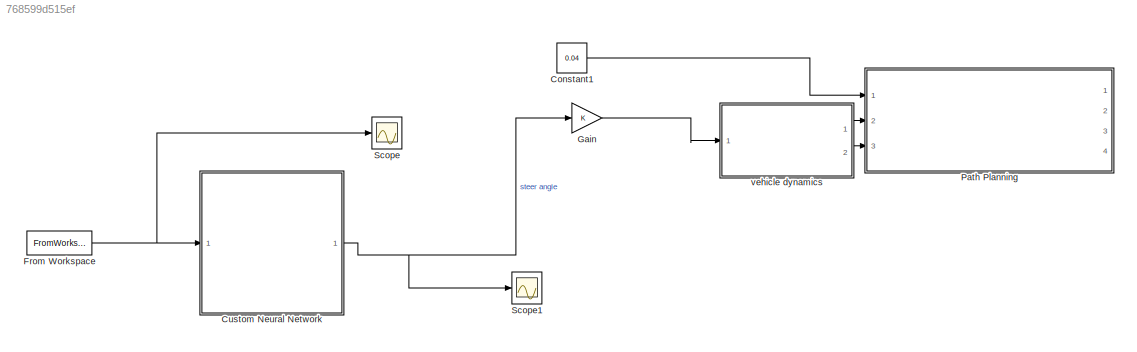
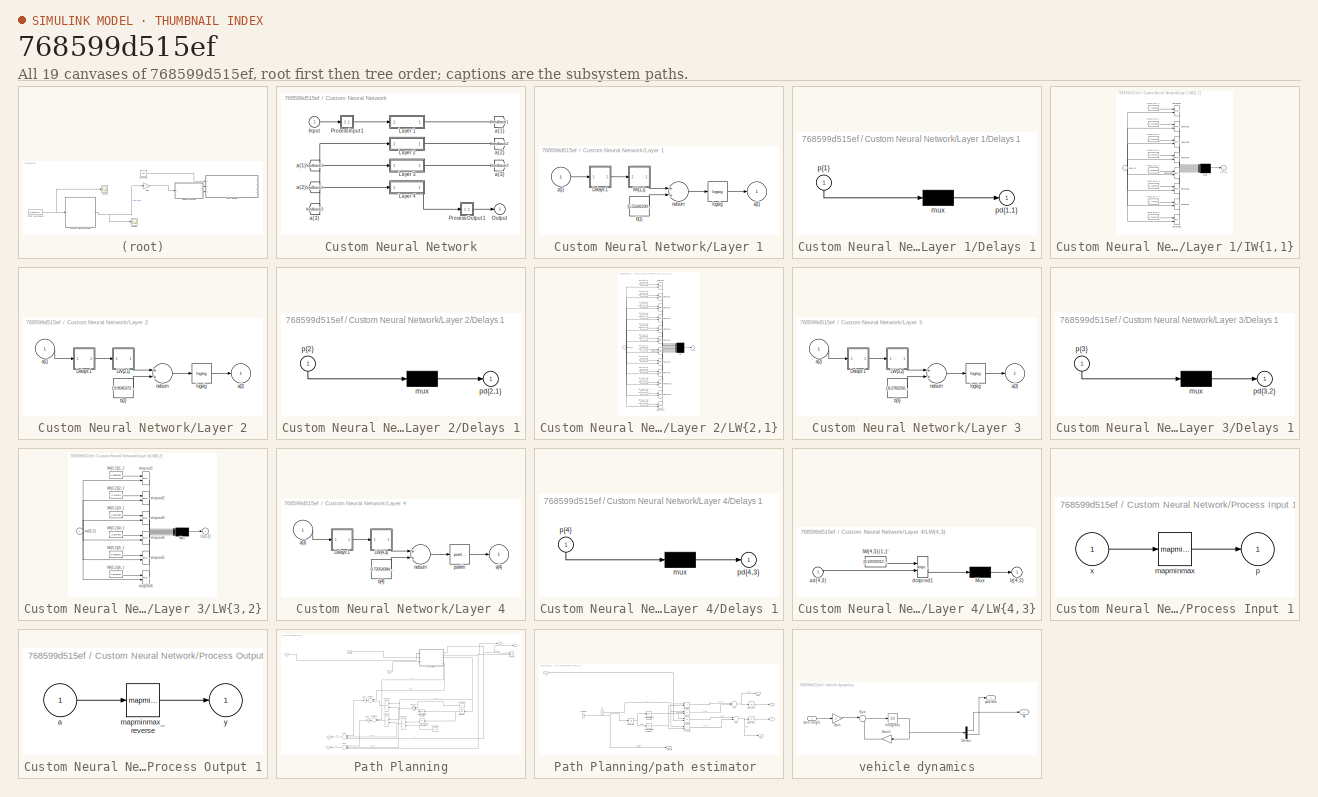
[diagram: thumbnail index - all 19 canvases of the model, root first then tree order]
MODEL slx_768599d515ef
KIND model
CONFIG AbsTol = auto
CONFIG FixedStep = auto
CONFIG MaxStep = auto
CONFIG MinStep = auto
CONFIG RelTol = 1e-3
CONFIG SampleTimeConstraint = Unconstrained
CONFIG Solver = VariableStepAuto
CONFIG SolverMode = Auto
CONFIG SolverName = VariableStepAuto
CONFIG StartTime = 400
CONFIG StopTime = 490
WORKSPACE source: MAT-file member
WORKSPACE MCOS: class17 (value not decoded)
BLOCK [Constant] Constant1
  Value = 0.04
BLOCK [SubSystem] Custom Neural Network
  Ports = [1, 1]
  RequestExecContextInheritance = off
  Variant = off
BLOCK [From] Custom Neural Network/ a{1} 
  GotoTag = feedback1
BLOCK [From] Custom Neural Network/ a{2} 
  GotoTag = feedback2
BLOCK [From] Custom Neural Network/ a{3} 
  GotoTag = feedback3
BLOCK [Inport] Custom Neural Network/Input
  IconDisplay = Port number
  PortDimensions = 3
BLOCK [SubSystem] Custom Neural Network/Layer 1
  Ports = [1, 1]
  RequestExecContextInheritance = off
  Variant = off
BLOCK [SubSystem] Custom Neural Network/Layer 1/Delays 1
  Ports = [1, 1]
  RequestExecContextInheritance = off
  Variant = off
BLOCK [Mux] Custom Neural Network/Layer 1/Delays 1/mux
  Inputs = 1
  Ports = [1, 1]
BLOCK [Outport] Custom Neural Network/Layer 1/Delays 1/pd{1,1}
  IconDisplay = Port number
BLOCK [Inport] Custom Neural Network/Layer 1/Delays 1/p{1}
  IconDisplay = Port number
  PortDimensions = 3
BLOCK [SubSystem] Custom Neural Network/Layer 1/IW{1,1}
  Ports = [1, 1]
  RequestExecContextInheritance = off
  Variant = off
BLOCK [Constant] Custom Neural Network/Layer 1/IW{1,1}/IW{1,1}(1,:)'
  Value = [-4.7515955353662367;0.56994378191386497;2.9569518278599798]
BLOCK [Constant] Custom Neural Network/Layer 1/IW{1,1}/IW{1,1}(2,:)'
  Value = [-3.6413650471838936;-4.2492694943073559;0.24995244933510893]
BLOCK [Constant] Custom Neural Network/Layer 1/IW{1,1}/IW{1,1}(3,:)'
  Value = [-4.0076838068077256;-1.8743043964395456;3.3523438106258405]
BLOCK [Constant] Custom Neural Network/Layer 1/IW{1,1}/IW{1,1}(4,:)'
  Value = [-4.5423307201862011;-1.4445484906453414;2.9693923469143257]
BLOCK [Constant] Custom Neural Network/Layer 1/IW{1,1}/IW{1,1}(5,:)'
  Value = [0.094082682891139052;-3.7035473652690687;-4.172481458166823]
BLOCK [Constant] Custom Neural Network/Layer 1/IW{1,1}/IW{1,1}(6,:)'
  Value = [-2.5603881036579934;-3.1793014555214452;-3.6172033611295187]
BLOCK [Constant] Custom Neural Network/Layer 1/IW{1,1}/IW{1,1}(7,:)'
  Value = [-1.476445523103719;-3.2523814911756834;-5.1641733069381663]
BLOCK [Constant] Custom Neural Network/Layer 1/IW{1,1}/IW{1,1}(8,:)'
  Value = [0.71166440186156654;-5.4447885418179451;-0.82561009231850535]
BLOCK [Mux] Custom Neural Network/Layer 1/IW{1,1}/Mux
  Inputs = 8
  Ports = [8, 1]
BLOCK [Reference] Custom Neural Network/Layer 1/IW{1,1}/dotprod1  REF=neural/Weight Functions/dotprod
  Ports = [2, 1]
  SourceBlock = neural/Weight Functions/dotprod
  SourceType = DOTPROD
BLOCK [Reference] Custom Neural Network/Layer 1/IW{1,1}/dotprod2  REF=neural/Weight Functions/dotprod
  Ports = [2, 1]
  SourceBlock = neural/Weight Functions/dotprod
  SourceType = DOTPROD
BLOCK [Reference] Custom Neural Network/Layer 1/IW{1,1}/dotprod3  REF=neural/Weight Functions/dotprod
  Ports = [2, 1]
  SourceBlock = neural/Weight Functions/dotprod
  SourceType = DOTPROD
BLOCK [Reference] Custom Neural Network/Layer 1/IW{1,1}/dotprod4  REF=neural/Weight Functions/dotprod
  Ports = [2, 1]
  SourceBlock = neural/Weight Functions/dotprod
  SourceType = DOTPROD
BLOCK [Reference] Custom Neural Network/Layer 1/IW{1,1}/dotprod5  REF=neural/Weight Functions/dotprod
  Ports = [2, 1]
  SourceBlock = neural/Weight Functions/dotprod
  SourceType = DOTPROD
BLOCK [Reference] Custom Neural Network/Layer 1/IW{1,1}/dotprod6  REF=neural/Weight Functions/dotprod
  Ports = [2, 1]
  SourceBlock = neural/Weight Functions/dotprod
  SourceType = DOTPROD
BLOCK [Reference] Custom Neural Network/Layer 1/IW{1,1}/dotprod7  REF=neural/Weight Functions/dotprod
  Ports = [2, 1]
  SourceBlock = neural/Weight Functions/dotprod
  SourceType = DOTPROD
BLOCK [Reference] Custom Neural Network/Layer 1/IW{1,1}/dotprod8  REF=neural/Weight Functions/dotprod
  Ports = [2, 1]
  SourceBlock = neural/Weight Functions/dotprod
  SourceType = DOTPROD
BLOCK [Outport] Custom Neural Network/Layer 1/IW{1,1}/iz{1,1}
  IconDisplay = Port number
BLOCK [Inport] Custom Neural Network/Layer 1/IW{1,1}/pd{1,1}
  IconDisplay = Port number
  PortDimensions = 3
BLOCK [Outport] Custom Neural Network/Layer 1/a{1}
  IconDisplay = Port number
  InitialOutput = [0;0;0;0;0;0;0;0]
BLOCK [Constant] Custom Neural Network/Layer 1/b{1}
  Value = [5.5544123070709173;3.9991261017647801;2.753083507084118;0.78874335530619089;-0.92456491956248199;-2.6156874375984605;-3.5526751162029191;5.6595401663250788]
BLOCK [Reference] Custom Neural Network/Layer 1/logsig  REF=neural/Transfer Functions/logsig
  Ports = [1, 1]
  SourceBlock = neural/Transfer Functions/logsig
  SourceType = LOGSIG
BLOCK [Sum] Custom Neural Network/Layer 1/netsum
  Inputs = 2
  Ports = [2, 1]
BLOCK [Inport] Custom Neural Network/Layer 1/p{1}
  IconDisplay = Port number
  PortDimensions = 3
BLOCK [SubSystem] Custom Neural Network/Layer 2
  Ports = [1, 1]
  RequestExecContextInheritance = off
  Variant = off
BLOCK [SubSystem] Custom Neural Network/Layer 2/Delays 1
  Ports = [1, 1]
  RequestExecContextInheritance = off
  Variant = off
BLOCK [Mux] Custom Neural Network/Layer 2/Delays 1/mux
  Inputs = 1
  Ports = [1, 1]
BLOCK [Outport] Custom Neural Network/Layer 2/Delays 1/pd{2,1}
  IconDisplay = Port number
BLOCK [Inport] Custom Neural Network/Layer 2/Delays 1/p{2}
  IconDisplay = Port number
  PortDimensions = 8
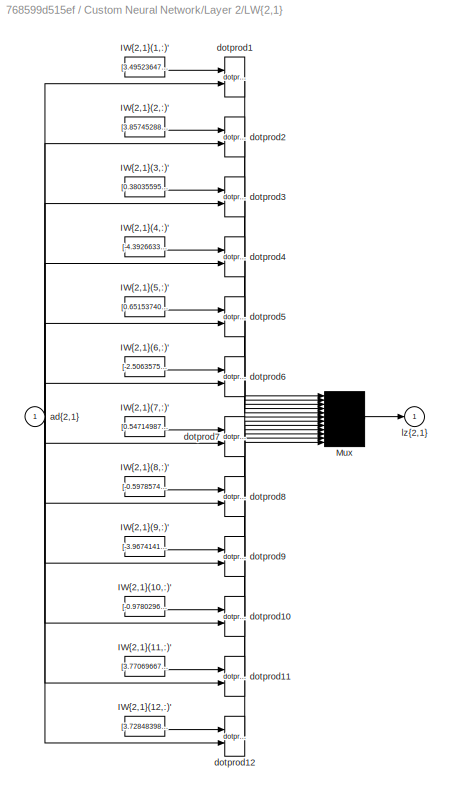
BLOCK [SubSystem] Custom Neural Network/Layer 2/LW{2,1}
  Ports = [1, 1]
  RequestExecContextInheritance = off
  Variant = off
BLOCK [Constant] Custom Neural Network/Layer 2/LW{2,1}/IW{2,1}(1,:)'
  Value = [3.4952364763600641;3.3352286238671152;0.0090638512391077522;4.7324121664670971;-1.2750210347134885;-1.7495700159786409;0.92802862484735094;2.6003615577949235]
BLOCK [Constant] Custom Neural Network/Layer 2/LW{2,1}/IW{2,1}(10,:)'
  Value = [-0.97802968851780503;-1.1807838236279744;-1.2858379659563102;-3.5455261014175057;-3.0453601170063456;1.3705823824974561;3.9057918329019206;-3.8911162463772322]
BLOCK [Constant] Custom Neural Network/Layer 2/LW{2,1}/IW{2,1}(11,:)'
  Value = [3.7706966797152259;-1.7284812894667134;-0.54934035541561221;-3.9733557052778812;3.6742450753416405;3.223445123854872;0.34084214944264418;1.0715808949706762]
BLOCK [Constant] Custom Neural Network/Layer 2/LW{2,1}/IW{2,1}(12,:)'
  Value = [3.7284839867953656;-3.8480085937185056;-2.5611667623630296;-1.3396667775953703;0.79615351360284248;-2.8053152955588052;-4.2392482634326525;0.46370362568787571]
BLOCK [Constant] Custom Neural Network/Layer 2/LW{2,1}/IW{2,1}(2,:)'
  Value = [3.8574528846953595;3.8030370974978047;2.5354904619052463;-1.8736771034718611;2.0733139318550031;2.7479889810178442;-0.33976896587875149;-2.5524819729023367]
BLOCK [Constant] Custom Neural Network/Layer 2/LW{2,1}/IW{2,1}(3,:)'
  Value = [0.3803559597074167;-3.5208618160656875;-1.4976824481070463;0.18213330606476405;3.7216778787958114;-4.3107673331119329;0.92725711212817885;3.1774269941469493]
BLOCK [Constant] Custom Neural Network/Layer 2/LW{2,1}/IW{2,1}(4,:)'
  Value = [-4.3926633312577481;1.4382145026847724;-0.025183696119600037;0.23382549533835134;1.2244146136973597;-4.0129111433986466;0.47236969431999981;4.3776299838162656]
BLOCK [Constant] Custom Neural Network/Layer 2/LW{2,1}/IW{2,1}(5,:)'
  Value = [0.65153740202206412;-0.94625107406060427;-3.1488837359122135;3.0341994820633595;3.7156732897268188;3.6519955344486292;0.15528533471893013;-3.2659103076971858]
BLOCK [Constant] Custom Neural Network/Layer 2/LW{2,1}/IW{2,1}(6,:)'
  Value = [-2.5063575368122546;0.87451050046942702;1.0156189681218217;5.2997889515178311;3.1557438990270197;-1.1239485477987794;-2.425242601429451;-2.2891874786540174]
BLOCK [Constant] Custom Neural Network/Layer 2/LW{2,1}/IW{2,1}(7,:)'
  Value = [0.54714987343271371;-3.064045430286348;0.23488292209043674;-4.6680196057718524;0.39194376417473953;0.41754116974846028;4.07964462962887;3.2309163388662854]
BLOCK [Constant] Custom Neural Network/Layer 2/LW{2,1}/IW{2,1}(8,:)'
  Value = [-0.59785740775431995;-1.0486580581334126;-1.353539797059842;4.1817549384953967;3.1177362513912303;3.5494347759417266;3.9489644391106449;-0.62594300462373198]
BLOCK [Constant] Custom Neural Network/Layer 2/LW{2,1}/IW{2,1}(9,:)'
  Value = [-3.9674141232508613;-1.6515291424177114;3.7798135494978191;1.3762222237573971;3.2838343537209758;-1.656513204049614;3.1759218576272801;-0.069179735634713885]
BLOCK [Mux] Custom Neural Network/Layer 2/LW{2,1}/Mux
  Inputs = 12
  Ports = [12, 1]
BLOCK [Inport] Custom Neural Network/Layer 2/LW{2,1}/ad{2,1}
  IconDisplay = Port number
  PortDimensions = 8
BLOCK [Reference] Custom Neural Network/Layer 2/LW{2,1}/dotprod1  REF=neural/Weight Functions/dotprod
  Ports = [2, 1]
  SourceBlock = neural/Weight Functions/dotprod
  SourceType = DOTPROD
BLOCK [Reference] Custom Neural Network/Layer 2/LW{2,1}/dotprod10  REF=neural/Weight Functions/dotprod
  Ports = [2, 1]
  SourceBlock = neural/Weight Functions/dotprod
  SourceType = DOTPROD
BLOCK [Reference] Custom Neural Network/Layer 2/LW{2,1}/dotprod11  REF=neural/Weight Functions/dotprod
  Ports = [2, 1]
  SourceBlock = neural/Weight Functions/dotprod
  SourceType = DOTPROD
BLOCK [Reference] Custom Neural Network/Layer 2/LW{2,1}/dotprod12  REF=neural/Weight Functions/dotprod
  Ports = [2, 1]
  SourceBlock = neural/Weight Functions/dotprod
  SourceType = DOTPROD
BLOCK [Reference] Custom Neural Network/Layer 2/LW{2,1}/dotprod2  REF=neural/Weight Functions/dotprod
  Ports = [2, 1]
  SourceBlock = neural/Weight Functions/dotprod
  SourceType = DOTPROD
BLOCK [Reference] Custom Neural Network/Layer 2/LW{2,1}/dotprod3  REF=neural/Weight Functions/dotprod
  Ports = [2, 1]
  SourceBlock = neural/Weight Functions/dotprod
  SourceType = DOTPROD
BLOCK [Reference] Custom Neural Network/Layer 2/LW{2,1}/dotprod4  REF=neural/Weight Functions/dotprod
  Ports = [2, 1]
  SourceBlock = neural/Weight Functions/dotprod
  SourceType = DOTPROD
BLOCK [Reference] Custom Neural Network/Layer 2/LW{2,1}/dotprod5  REF=neural/Weight Functions/dotprod
  Ports = [2, 1]
  SourceBlock = neural/Weight Functions/dotprod
  SourceType = DOTPROD
BLOCK [Reference] Custom Neural Network/Layer 2/LW{2,1}/dotprod6  REF=neural/Weight Functions/dotprod
  Ports = [2, 1]
  SourceBlock = neural/Weight Functions/dotprod
  SourceType = DOTPROD
BLOCK [Reference] Custom Neural Network/Layer 2/LW{2,1}/dotprod7  REF=neural/Weight Functions/dotprod
  Ports = [2, 1]
  SourceBlock = neural/Weight Functions/dotprod
  SourceType = DOTPROD
BLOCK [Reference] Custom Neural Network/Layer 2/LW{2,1}/dotprod8  REF=neural/Weight Functions/dotprod
  Ports = [2, 1]
  SourceBlock = neural/Weight Functions/dotprod
  SourceType = DOTPROD
BLOCK [Reference] Custom Neural Network/Layer 2/LW{2,1}/dotprod9  REF=neural/Weight Functions/dotprod
  Ports = [2, 1]
  SourceBlock = neural/Weight Functions/dotprod
  SourceType = DOTPROD
BLOCK [Outport] Custom Neural Network/Layer 2/LW{2,1}/lz{2,1}
  IconDisplay = Port number
BLOCK [Inport] Custom Neural Network/Layer 2/a{1} 
  IconDisplay = Port number
  PortDimensions = 8
BLOCK [Outport] Custom Neural Network/Layer 2/a{2}
  IconDisplay = Port number
  InitialOutput = [0;0;0;0;0;0;0;0;0;0;0;0]
BLOCK [Constant] Custom Neural Network/Layer 2/b{2}
  Value = [-9.9045371666562776;-8.3750215469648825;-2.388053903473192;2.1423341603299244;-3.0520605055627383;-0.043912055120703147;0.23466491531084299;-6.9234433197181184;-3.8469745317461475;1.9629669670581462;0.43430596784670755;7.5678373620144495]
BLOCK [Reference] Custom Neural Network/Layer 2/logsig  REF=neural/Transfer Functions/logsig
  Ports = [1, 1]
  SourceBlock = neural/Transfer Functions/logsig
  SourceType = LOGSIG
BLOCK [Sum] Custom Neural Network/Layer 2/netsum
  Inputs = 2
  Ports = [2, 1]
BLOCK [SubSystem] Custom Neural Network/Layer 3
  Ports = [1, 1]
  RequestExecContextInheritance = off
  Variant = off
BLOCK [SubSystem] Custom Neural Network/Layer 3/Delays 1
  Ports = [1, 1]
  RequestExecContextInheritance = off
  Variant = off
BLOCK [Mux] Custom Neural Network/Layer 3/Delays 1/mux
  Inputs = 1
  Ports = [1, 1]
BLOCK [Outport] Custom Neural Network/Layer 3/Delays 1/pd{3,2}
  IconDisplay = Port number
BLOCK [Inport] Custom Neural Network/Layer 3/Delays 1/p{3}
  IconDisplay = Port number
  PortDimensions = 12
BLOCK [SubSystem] Custom Neural Network/Layer 3/LW{3,2}
  Ports = [1, 1]
  RequestExecContextInheritance = off
  Variant = off
BLOCK [Constant] Custom Neural Network/Layer 3/LW{3,2}/IW{3,2}(1,:)'
  Value = [1.5885339221711201;3.1774227885294408;1.043740679916719;1.2657715789707329;-0.58086641379931359;-2.2399128231060992;1.5026332313824657;1.4941112049056346;1.0991837368632531;-1.5612201808173807;-0.96381317909104924;3.2712447008464229]
BLOCK [Constant] Custom Neural Network/Layer 3/LW{3,2}/IW{3,2}(2,:)'
  Value = [-2.7041611900053835;2.6769445158089598;-2.3955907503223188;-1.7163166403425203;1.0008442878579711;1.5413608209377707;1.2493515854476771;1.9480973852741359;-2.150308125012776;2.1869061522305029;-0.98944432868416654;-0.95176892451171158]
BLOCK [Constant] Custom Neural Network/Layer 3/LW{3,2}/IW{3,2}(3,:)'
  Value = [1.5622128017803534;-1.1967143282660477;0.46139978097028983;-2.7690637401419957;2.6589390243161031;-2.3824125744198708;-2.9119164500624146;-1.0556201085530774;-0.73393190388088636;-0.72966690420947689;-1.2074352123629013;2.5020358050908897]
BLOCK [Constant] Custom Neural Network/Layer 3/LW{3,2}/IW{3,2}(4,:)'
  Value = [-1.8917402603356579;1.5673735954075221;2.8620875940306103;-0.23510380664286792;-1.3748089230704452;2.3721638655721899;-1.8287697597060733;-2.2691237665501429;1.0934707709747109;-2.246046188820094;-1.266593337126642;-2.0458888145925753]
BLOCK [Constant] Custom Neural Network/Layer 3/LW{3,2}/IW{3,2}(5,:)'
  Value = [0.25555053516208037;-2.1106541474533307;2.3686190554182018;-2.8658154374883984;0.31650032376755077;0.28992671990318386;-2.2483927958790231;1.3385522174023512;0.080169070031558765;-2.9513300299236405;-1.8607699299497606;2.9178206474768329]
BLOCK [Constant] Custom Neural Network/Layer 3/LW{3,2}/IW{3,2}(6,:)'
  Value = [2.2623524200165992;1.9965221940348346;1.3267833589878235;-1.7387449263604031;2.3034322945126715;2.5333565786219427;-2.133041035781023;1.8231988140834701;2.5354302254209413;1.2528977172269551;-0.099851289260227696;1.3218427129733386]
BLOCK [Mux] Custom Neural Network/Layer 3/LW{3,2}/Mux
  Inputs = 6
  Ports = [6, 1]
BLOCK [Inport] Custom Neural Network/Layer 3/LW{3,2}/ad{3,2}
  IconDisplay = Port number
  PortDimensions = 12
BLOCK [Reference] Custom Neural Network/Layer 3/LW{3,2}/dotprod1  REF=neural/Weight Functions/dotprod
  Ports = [2, 1]
  SourceBlock = neural/Weight Functions/dotprod
  SourceType = DOTPROD
BLOCK [Reference] Custom Neural Network/Layer 3/LW{3,2}/dotprod2  REF=neural/Weight Functions/dotprod
  Ports = [2, 1]
  SourceBlock = neural/Weight Functions/dotprod
  SourceType = DOTPROD
BLOCK [Reference] Custom Neural Network/Layer 3/LW{3,2}/dotprod3  REF=neural/Weight Functions/dotprod
  Ports = [2, 1]
  SourceBlock = neural/Weight Functions/dotprod
  SourceType = DOTPROD
BLOCK [Reference] Custom Neural Network/Layer 3/LW{3,2}/dotprod4  REF=neural/Weight Functions/dotprod
  Ports = [2, 1]
  SourceBlock = neural/Weight Functions/dotprod
  SourceType = DOTPROD
BLOCK [Reference] Custom Neural Network/Layer 3/LW{3,2}/dotprod5  REF=neural/Weight Functions/dotprod
  Ports = [2, 1]
  SourceBlock = neural/Weight Functions/dotprod
  SourceType = DOTPROD
BLOCK [Reference] Custom Neural Network/Layer 3/LW{3,2}/dotprod6  REF=neural/Weight Functions/dotprod
  Ports = [2, 1]
  SourceBlock = neural/Weight Functions/dotprod
  SourceType = DOTPROD
BLOCK [Outport] Custom Neural Network/Layer 3/LW{3,2}/lz{3,2}
  IconDisplay = Port number
BLOCK [Inport] Custom Neural Network/Layer 3/a{2} 
  IconDisplay = Port number
  PortDimensions = 12
BLOCK [Outport] Custom Neural Network/Layer 3/a{3}
  IconDisplay = Port number
  InitialOutput = [0;0;0;0;0;0]
BLOCK [Constant] Custom Neural Network/Layer 3/b{3}
  Value = [-8.2782256207655252;1.1750888367183379;1.754139640722451;1.9643702240827425;3.6661326168945774;-3.1213475354479678]
BLOCK [Reference] Custom Neural Network/Layer 3/logsig  REF=neural/Transfer Functions/logsig
  Ports = [1, 1]
  SourceBlock = neural/Transfer Functions/logsig
  SourceType = LOGSIG
BLOCK [Sum] Custom Neural Network/Layer 3/netsum
  Inputs = 2
  Ports = [2, 1]
BLOCK [SubSystem] Custom Neural Network/Layer 4
  Ports = [1, 1]
  RequestExecContextInheritance = off
  Variant = off
BLOCK [SubSystem] Custom Neural Network/Layer 4/Delays 1
  Ports = [1, 1]
  RequestExecContextInheritance = off
  Variant = off
BLOCK [Mux] Custom Neural Network/Layer 4/Delays 1/mux
  Inputs = 1
  Ports = [1, 1]
BLOCK [Outport] Custom Neural Network/Layer 4/Delays 1/pd{4,3}
  IconDisplay = Port number
BLOCK [Inport] Custom Neural Network/Layer 4/Delays 1/p{4}
  IconDisplay = Port number
  PortDimensions = 6
BLOCK [SubSystem] Custom Neural Network/Layer 4/LW{4,3}
  Ports = [1, 1]
  RequestExecContextInheritance = off
  Variant = off
BLOCK [Constant] Custom Neural Network/Layer 4/LW{4,3}/IW{4,3}(1,:)'
  Value = [0.22030312961113538;0.80326297622600873;-0.4082495457670765;-0.17958365464673876;1.7470087485261638;-0.44589421029684495]
BLOCK [Mux] Custom Neural Network/Layer 4/LW{4,3}/Mux
  Inputs = 1
  Ports = [1, 1]
BLOCK [Inport] Custom Neural Network/Layer 4/LW{4,3}/ad{4,3}
  IconDisplay = Port number
  PortDimensions = 6
BLOCK [Reference] Custom Neural Network/Layer 4/LW{4,3}/dotprod1  REF=neural/Weight Functions/dotprod
  Ports = [2, 1]
  SourceBlock = neural/Weight Functions/dotprod
  SourceType = DOTPROD
BLOCK [Outport] Custom Neural Network/Layer 4/LW{4,3}/lz{4,3}
  IconDisplay = Port number
BLOCK [Inport] Custom Neural Network/Layer 4/a{3} 
  IconDisplay = Port number
  PortDimensions = 6
BLOCK [Outport] Custom Neural Network/Layer 4/a{4}
  IconDisplay = Port number
  InitialOutput = 0
BLOCK [Constant] Custom Neural Network/Layer 4/b{4}
  Value = -0.72054384233528035
BLOCK [Sum] Custom Neural Network/Layer 4/netsum
  Inputs = 2
  Ports = [2, 1]
BLOCK [Reference] Custom Neural Network/Layer 4/purelin  REF=neural/Transfer Functions/purelin
  Ports = [1, 1]
  SourceBlock = neural/Transfer Functions/purelin
  SourceType = PURELIN
BLOCK [Outport] Custom Neural Network/Output
  IconDisplay = Port number
  InitialOutput = 0
BLOCK [SubSystem] Custom Neural Network/Process Input 1
  Ports = [1, 1]
  RequestExecContextInheritance = off
  Variant = off
BLOCK [Reference] Custom Neural Network/Process Input 1/mapminmax  REF=neural/Processing Functions/mapminmax
  Ports = [1, 1]
  SourceBlock = neural/Processing Functions/mapminmax
  SourceType = MAPMINMAX Preprocess
BLOCK [Outport] Custom Neural Network/Process Input 1/p
  IconDisplay = Port number
  PortDimensions = 3
BLOCK [Inport] Custom Neural Network/Process Input 1/x
  IconDisplay = Port number
  PortDimensions = 3
BLOCK [SubSystem] Custom Neural Network/Process Output 1
  Ports = [1, 1]
  RequestExecContextInheritance = off
  Variant = off
BLOCK [Inport] Custom Neural Network/Process Output 1/a
  IconDisplay = Port number
  PortDimensions = 1
BLOCK [Reference] Custom Neural Network/Process Output 1/mapminmax_reverse  REF=neural/Processing Functions/mapminmax_reverse
  Ports = [1, 1]
  SourceBlock = neural/Processing Functions/mapminmax_reverse
  SourceType = MAPMINMAX Reverse Process
BLOCK [Outport] Custom Neural Network/Process Output 1/y
  IconDisplay = Port number
  PortDimensions = 1
BLOCK [Goto] Custom Neural Network/a{1}
  GotoTag = feedback1
BLOCK [Goto] Custom Neural Network/a{2}
  GotoTag = feedback2
BLOCK [Goto] Custom Neural Network/a{3}
  GotoTag = feedback3
BLOCK [FromWorkspace] From Workspace
  VariableName = ts_pos
  ZeroCross = on
BLOCK [Gain] Gain
  OutDataTypeStr = Inherit: Inherit via internal rule
  ParamDataTypeStr = Inherit: Inherit via internal rule
  SaturateOnIntegerOverflow = off
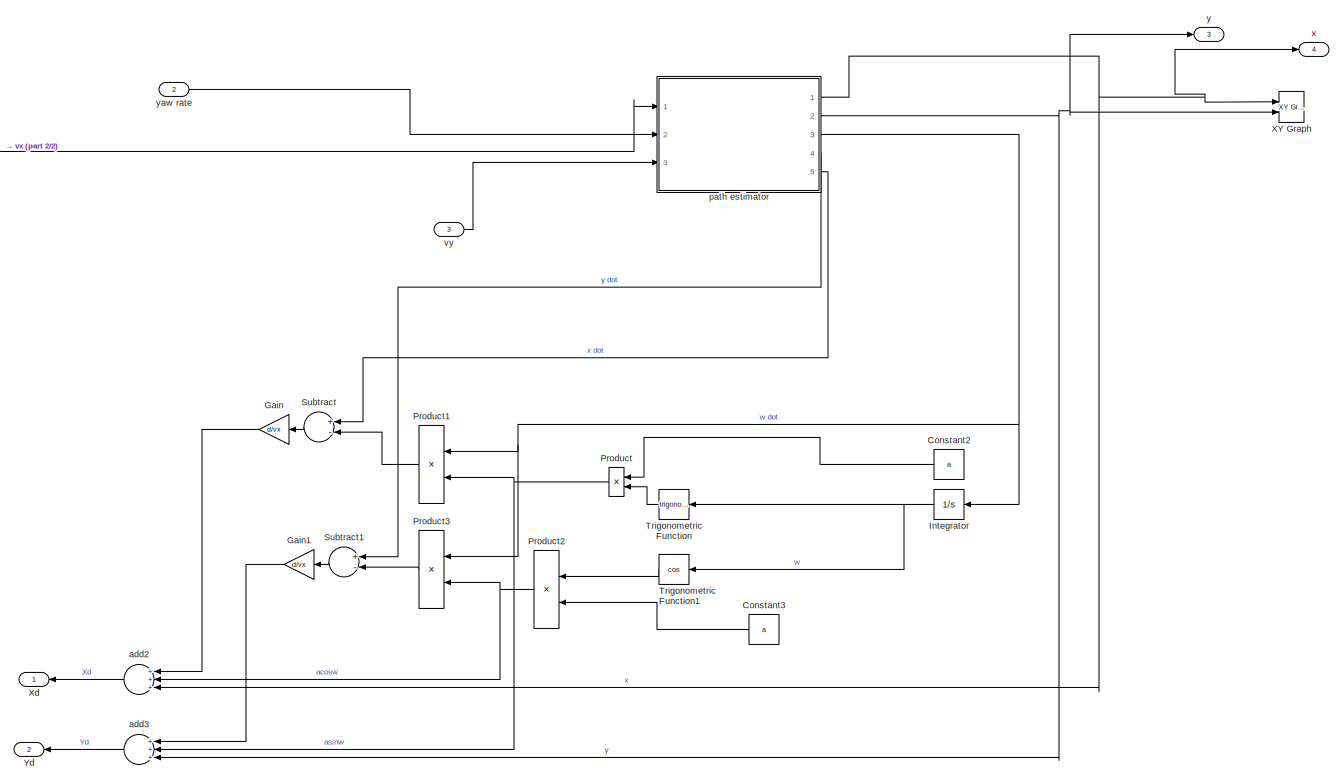
[diagram: Path Planning - part 1/2, most of the canvas]
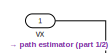
[diagram: Path Planning - part 2/2, top left region]
BLOCK [SubSystem] Path Planning
  Ports = [3, 4]
  RequestExecContextInheritance = off
  Variant = off
BLOCK [Inport] Path Planning/ yaw rate
  IconDisplay = Port number
  Port = 2
BLOCK [Constant] Path Planning/Constant2
  Value = a
BLOCK [Constant] Path Planning/Constant3
  Value = a
BLOCK [Gain] Path Planning/Gain
  Gain = d/vx
  OutDataTypeStr = Inherit: Inherit via internal rule
  ParamDataTypeStr = Inherit: Inherit via internal rule
  SaturateOnIntegerOverflow = off
BLOCK [Gain] Path Planning/Gain1
  Gain = d/vx
  OutDataTypeStr = Inherit: Inherit via internal rule
  ParamDataTypeStr = Inherit: Inherit via internal rule
  SaturateOnIntegerOverflow = off
BLOCK [Integrator] Path Planning/Integrator
  Ports = [1, 1]
BLOCK [Product] Path Planning/Product
  InputSameDT = off
  OutDataTypeStr = Inherit: Inherit via internal rule
  Ports = [2, 1]
  RndMeth = Floor
  SaturateOnIntegerOverflow = off
BLOCK [Product] Path Planning/Product1
  InputSameDT = off
  OutDataTypeStr = Inherit: Inherit via internal rule
  Ports = [2, 1]
  RndMeth = Floor
  SaturateOnIntegerOverflow = off
BLOCK [Product] Path Planning/Product2
  InputSameDT = off
  OutDataTypeStr = Inherit: Inherit via internal rule
  Ports = [2, 1]
  RndMeth = Floor
  SaturateOnIntegerOverflow = off
BLOCK [Product] Path Planning/Product3
  InputSameDT = off
  OutDataTypeStr = Inherit: Inherit via internal rule
  Ports = [2, 1]
  RndMeth = Floor
  SaturateOnIntegerOverflow = off
BLOCK [Sum] Path Planning/Subtract
  InputSameDT = off
  Inputs = +-
  OutDataTypeStr = Inherit: Inherit via internal rule
  Ports = [2, 1]
  SaturateOnIntegerOverflow = off
BLOCK [Sum] Path Planning/Subtract1
  InputSameDT = off
  Inputs = +-
  OutDataTypeStr = Inherit: Inherit via internal rule
  Ports = [2, 1]
  SaturateOnIntegerOverflow = off
BLOCK [Trigonometry] Path Planning/Trigonometric Function
  Ports = [1, 1]
BLOCK [Trigonometry] Path Planning/Trigonometric Function1
  Operator = cos
  Ports = [1, 1]
BLOCK [Reference] Path Planning/XY Graph  REF=simulink/Sinks/XY Graph
  Ports = [2]
  SourceBlock = simulink/Sinks/XY Graph
  SourceType = XY scope.
BLOCK [Outport] Path Planning/Xd
  IconDisplay = Port number
BLOCK [Outport] Path Planning/Yd
  IconDisplay = Port number
  Port = 2
BLOCK [Sum] Path Planning/add2
  InputSameDT = off
  Inputs = +++
  OutDataTypeStr = Inherit: Inherit via internal rule
  Ports = [3, 1]
  SaturateOnIntegerOverflow = off
BLOCK [Sum] Path Planning/add3
  InputSameDT = off
  Inputs = +++
  OutDataTypeStr = Inherit: Inherit via internal rule
  Ports = [3, 1]
  SaturateOnIntegerOverflow = off
BLOCK [SubSystem] Path Planning/path estimator 
  Ports = [3, 5]
  RequestExecContextInheritance = off
  Variant = off
BLOCK [Inport] Path Planning/path estimator / yaw rate 
  IconDisplay = Port number
  Port = 2
BLOCK [Sum] Path Planning/path estimator /Add
  InputSameDT = off
  Inputs = +-
  OutDataTypeStr = Inherit: Inherit via internal rule
  Ports = [2, 1]
  SaturateOnIntegerOverflow = off
BLOCK [Sum] Path Planning/path estimator /Add1
  InputSameDT = off
  OutDataTypeStr = Inherit: Inherit via internal rule
  Ports = [2, 1]
  SaturateOnIntegerOverflow = off
BLOCK [Integrator] Path Planning/path estimator /Integrator
  Ports = [1, 1]
BLOCK [Integrator] Path Planning/path estimator /Integrator1
  Ports = [1, 1]
BLOCK [Integrator] Path Planning/path estimator /Integrator2
  Ports = [1, 1]
BLOCK [Product] Path Planning/path estimator /Product
  InputSameDT = off
  OutDataTypeStr = Inherit: Inherit via internal rule
  Ports = [2, 1]
  RndMeth = Floor
  SaturateOnIntegerOverflow = off
BLOCK [Product] Path Planning/path estimator /Product2
  InputSameDT = off
  OutDataTypeStr = Inherit: Inherit via internal rule
  Ports = [2, 1]
  RndMeth = Floor
  SaturateOnIntegerOverflow = off
BLOCK [Product] Path Planning/path estimator /Product3
  InputSameDT = off
  OutDataTypeStr = Inherit: Inherit via internal rule
  Ports = [2, 1]
  RndMeth = Floor
  SaturateOnIntegerOverflow = off
BLOCK [Product] Path Planning/path estimator /Product4
  InputSameDT = off
  OutDataTypeStr = Inherit: Inherit via internal rule
  Ports = [2, 1]
  RndMeth = Floor
  SaturateOnIntegerOverflow = off
BLOCK [Trigonometry] Path Planning/path estimator /Trigonometric Function
  Ports = [1, 1]
BLOCK [Trigonometry] Path Planning/path estimator /Trigonometric Function1
  Operator = cos
  OutputSignalType = real
  Ports = [1, 1]
BLOCK [Inport] Path Planning/path estimator /vx 
  IconDisplay = Port number
BLOCK [Inport] Path Planning/path estimator /vy 
  IconDisplay = Port number
  Port = 3
BLOCK [Outport] Path Planning/path estimator /x 
  IconDisplay = Port number
BLOCK [Outport] Path Planning/path estimator /x dot
  IconDisplay = Port number
  Port = 5
BLOCK [Outport] Path Planning/path estimator /y 
  IconDisplay = Port number
  Port = 2
BLOCK [Outport] Path Planning/path estimator /y dot
  IconDisplay = Port number
  Port = 4
BLOCK [Outport] Path Planning/path estimator /yaw rate
  IconDisplay = Port number
  Port = 3
BLOCK [Inport] Path Planning/vx
  IconDisplay = Port number
BLOCK [Inport] Path Planning/vy 
  IconDisplay = Port number
  Port = 3
BLOCK [Outport] Path Planning/x
  IconDisplay = Port number
  Port = 4
BLOCK [Outport] Path Planning/y
  IconDisplay = Port number
  Port = 3
BLOCK [Scope] Scope
  Ports = [1]
  ScopeSpecificationString = Simulink.scopes.TimeScopeBlockCfg('CurrentConfiguration', extmgr.ConfigurationSet(extmgr.Configuration('Core','General UI',true),extmgr.Configuration('Core','Source UI',true),extmgr.Configuration('Sources','WiredSimulink',true),extmgr.Configuration('Visuals','Time Domain',true,'SerializedDisplays',{struct('MinYLimReal','-0.05','MaxYLimReal','1.25','YLabelReal','','MinYLimMag','0.00000','MaxYLimMag...<+1422ch>
BLOCK [Scope] Scope1
  Ports = [1]
  ScopeSpecificationString = Simulink.scopes.TimeScopeBlockCfg('CurrentConfiguration', extmgr.ConfigurationSet(extmgr.Configuration('Core','General UI',true),extmgr.Configuration('Core','Source UI',true),extmgr.Configuration('Sources','WiredSimulink',true,'DataLoggingVariableName','ScopeData1'),extmgr.Configuration('Visuals','Time Domain',true,'SerializedDisplays',{struct('MinYLimReal','0.35867','MaxYLimReal','1.32653','YLabe...<+1423ch>
BLOCK [SubSystem] vehicle dynamics
  Ports = [1, 2]
  RequestExecContextInheritance = off
  Variant = off
BLOCK [Demux] vehicle dynamics/Demux
  DisplayOption = bar
  Outputs = 2
  Ports = [1, 2]
BLOCK [Gain] vehicle dynamics/Gain
  Gain = B
  Multiplication = Matrix(K*u)
  OutDataTypeStr = Inherit: Inherit via internal rule
  OutMax = 50*pi/180
  OutMin = -50*pi/180
  ParamDataTypeStr = Inherit: Inherit via internal rule
  SaturateOnIntegerOverflow = off
BLOCK [Gain] vehicle dynamics/Gain1
  Gain = A
  Multiplication = Matrix(K*u)
  OutDataTypeStr = Inherit: Inherit via internal rule
  ParamDataTypeStr = Inherit: Inherit via internal rule
  SaturateOnIntegerOverflow = off
BLOCK [Integrator] vehicle dynamics/Integrator
  Ports = [1, 1]
BLOCK [Sum] vehicle dynamics/Sum
  IconShape = round
  InputSameDT = off
  Inputs = |++
  OutDataTypeStr = Inherit: Inherit via internal rule
  Ports = [2, 1]
  SaturateOnIntegerOverflow = off
BLOCK [Inport] vehicle dynamics/steer angle
  IconDisplay = Port number
BLOCK [Outport] vehicle dynamics/vy
  IconDisplay = Port number
  Port = 2
BLOCK [Outport] vehicle dynamics/yaw rate
  IconDisplay = Port number
LINE Constant1:1 -> Path Planning:1
LINE Custom Neural Network/ a{1} :1 -> Custom Neural Network/Layer 2:1
LINE Custom Neural Network/ a{2} :1 -> Custom Neural Network/Layer 3:1
LINE Custom Neural Network/ a{3} :1 -> Custom Neural Network/Layer 4:1
LINE Custom Neural Network/Input:1 -> Custom Neural Network/Process Input 1:1
LINE Custom Neural Network/Layer 1/Delays 1/mux:1 -> Custom Neural Network/Layer 1/Delays 1/pd{1,1}:1
LINE Custom Neural Network/Layer 1/Delays 1/p{1}:1 -> Custom Neural Network/Layer 1/Delays 1/mux:1
LINE Custom Neural Network/Layer 1/Delays 1:1 -> Custom Neural Network/Layer 1/IW{1,1}:1
LINE Custom Neural Network/Layer 1/IW{1,1}/IW{1,1}(1,:)':1 -> Custom Neural Network/Layer 1/IW{1,1}/dotprod1:1
LINE Custom Neural Network/Layer 1/IW{1,1}/IW{1,1}(2,:)':1 -> Custom Neural Network/Layer 1/IW{1,1}/dotprod2:1
LINE Custom Neural Network/Layer 1/IW{1,1}/IW{1,1}(3,:)':1 -> Custom Neural Network/Layer 1/IW{1,1}/dotprod3:1
LINE Custom Neural Network/Layer 1/IW{1,1}/IW{1,1}(4,:)':1 -> Custom Neural Network/Layer 1/IW{1,1}/dotprod4:1
LINE Custom Neural Network/Layer 1/IW{1,1}/IW{1,1}(5,:)':1 -> Custom Neural Network/Layer 1/IW{1,1}/dotprod5:1
LINE Custom Neural Network/Layer 1/IW{1,1}/IW{1,1}(6,:)':1 -> Custom Neural Network/Layer 1/IW{1,1}/dotprod6:1
LINE Custom Neural Network/Layer 1/IW{1,1}/IW{1,1}(7,:)':1 -> Custom Neural Network/Layer 1/IW{1,1}/dotprod7:1
LINE Custom Neural Network/Layer 1/IW{1,1}/IW{1,1}(8,:)':1 -> Custom Neural Network/Layer 1/IW{1,1}/dotprod8:1
LINE Custom Neural Network/Layer 1/IW{1,1}/Mux:1 -> Custom Neural Network/Layer 1/IW{1,1}/iz{1,1}:1
LINE Custom Neural Network/Layer 1/IW{1,1}/dotprod1:1 -> Custom Neural Network/Layer 1/IW{1,1}/Mux:1
LINE Custom Neural Network/Layer 1/IW{1,1}/dotprod2:1 -> Custom Neural Network/Layer 1/IW{1,1}/Mux:2
LINE Custom Neural Network/Layer 1/IW{1,1}/dotprod3:1 -> Custom Neural Network/Layer 1/IW{1,1}/Mux:3
LINE Custom Neural Network/Layer 1/IW{1,1}/dotprod4:1 -> Custom Neural Network/Layer 1/IW{1,1}/Mux:4
LINE Custom Neural Network/Layer 1/IW{1,1}/dotprod5:1 -> Custom Neural Network/Layer 1/IW{1,1}/Mux:5
LINE Custom Neural Network/Layer 1/IW{1,1}/dotprod6:1 -> Custom Neural Network/Layer 1/IW{1,1}/Mux:6
LINE Custom Neural Network/Layer 1/IW{1,1}/dotprod7:1 -> Custom Neural Network/Layer 1/IW{1,1}/Mux:7
LINE Custom Neural Network/Layer 1/IW{1,1}/dotprod8:1 -> Custom Neural Network/Layer 1/IW{1,1}/Mux:8
NET Custom Neural Network/Layer 1/IW{1,1}/pd{1,1}:1 -> Custom Neural Network/Layer 1/IW{1,1}/dotprod1:2, Custom Neural Network/Layer 1/IW{1,1}/dotprod2:2, Custom Neural Network/Layer 1/IW{1,1}/dotprod3:2, Custom Neural Network/Layer 1/IW{1,1}/dotprod4:2, Custom Neural Network/Layer 1/IW{1,1}/dotprod5:2, Custom Neural Network/Layer 1/IW{1,1}/dotprod6:2, Custom Neural Network/Layer 1/IW{1,1}/dotprod7:2, Custom Neural Network/Layer 1/IW{1,1}/dotprod8:2
LINE Custom Neural Network/Layer 1/IW{1,1}:1 -> Custom Neural Network/Layer 1/netsum:1
LINE Custom Neural Network/Layer 1/b{1}:1 -> Custom Neural Network/Layer 1/netsum:2
LINE Custom Neural Network/Layer 1/logsig:1 -> Custom Neural Network/Layer 1/a{1}:1
LINE Custom Neural Network/Layer 1/netsum:1 -> Custom Neural Network/Layer 1/logsig:1
LINE Custom Neural Network/Layer 1/p{1}:1 -> Custom Neural Network/Layer 1/Delays 1:1
LINE Custom Neural Network/Layer 1:1 -> Custom Neural Network/a{1}:1
LINE Custom Neural Network/Layer 2/Delays 1/mux:1 -> Custom Neural Network/Layer 2/Delays 1/pd{2,1}:1
LINE Custom Neural Network/Layer 2/Delays 1/p{2}:1 -> Custom Neural Network/Layer 2/Delays 1/mux:1
LINE Custom Neural Network/Layer 2/Delays 1:1 -> Custom Neural Network/Layer 2/LW{2,1}:1
LINE Custom Neural Network/Layer 2/LW{2,1}/IW{2,1}(1,:)':1 -> Custom Neural Network/Layer 2/LW{2,1}/dotprod1:1
LINE Custom Neural Network/Layer 2/LW{2,1}/IW{2,1}(10,:)':1 -> Custom Neural Network/Layer 2/LW{2,1}/dotprod10:1
LINE Custom Neural Network/Layer 2/LW{2,1}/IW{2,1}(11,:)':1 -> Custom Neural Network/Layer 2/LW{2,1}/dotprod11:1
LINE Custom Neural Network/Layer 2/LW{2,1}/IW{2,1}(12,:)':1 -> Custom Neural Network/Layer 2/LW{2,1}/dotprod12:1
LINE Custom Neural Network/Layer 2/LW{2,1}/IW{2,1}(2,:)':1 -> Custom Neural Network/Layer 2/LW{2,1}/dotprod2:1
LINE Custom Neural Network/Layer 2/LW{2,1}/IW{2,1}(3,:)':1 -> Custom Neural Network/Layer 2/LW{2,1}/dotprod3:1
LINE Custom Neural Network/Layer 2/LW{2,1}/IW{2,1}(4,:)':1 -> Custom Neural Network/Layer 2/LW{2,1}/dotprod4:1
LINE Custom Neural Network/Layer 2/LW{2,1}/IW{2,1}(5,:)':1 -> Custom Neural Network/Layer 2/LW{2,1}/dotprod5:1
LINE Custom Neural Network/Layer 2/LW{2,1}/IW{2,1}(6,:)':1 -> Custom Neural Network/Layer 2/LW{2,1}/dotprod6:1
LINE Custom Neural Network/Layer 2/LW{2,1}/IW{2,1}(7,:)':1 -> Custom Neural Network/Layer 2/LW{2,1}/dotprod7:1
LINE Custom Neural Network/Layer 2/LW{2,1}/IW{2,1}(8,:)':1 -> Custom Neural Network/Layer 2/LW{2,1}/dotprod8:1
LINE Custom Neural Network/Layer 2/LW{2,1}/IW{2,1}(9,:)':1 -> Custom Neural Network/Layer 2/LW{2,1}/dotprod9:1
LINE Custom Neural Network/Layer 2/LW{2,1}/Mux:1 -> Custom Neural Network/Layer 2/LW{2,1}/lz{2,1}:1
NET Custom Neural Network/Layer 2/LW{2,1}/ad{2,1}:1 -> Custom Neural Network/Layer 2/LW{2,1}/dotprod10:2, Custom Neural Network/Layer 2/LW{2,1}/dotprod11:2, Custom Neural Network/Layer 2/LW{2,1}/dotprod12:2, Custom Neural Network/Layer 2/LW{2,1}/dotprod1:2, Custom Neural Network/Layer 2/LW{2,1}/dotprod2:2, Custom Neural Network/Layer 2/LW{2,1}/dotprod3:2, Custom Neural Network/Layer 2/LW{2,1}/dotprod4:2, Custom Neural Network/Layer 2/LW{2,1}/dotprod5:2, Custom Neural Network/Layer 2/LW{2,1}/dotprod6:2, Custom Neural Network/Layer 2/LW{2,1}/dotprod7:2, Custom Neural Network/Layer 2/LW{2,1}/dotprod8:2, Custom Neural Network/Layer 2/LW{2,1}/dotprod9:2
LINE Custom Neural Network/Layer 2/LW{2,1}/dotprod10:1 -> Custom Neural Network/Layer 2/LW{2,1}/Mux:10
LINE Custom Neural Network/Layer 2/LW{2,1}/dotprod11:1 -> Custom Neural Network/Layer 2/LW{2,1}/Mux:11
LINE Custom Neural Network/Layer 2/LW{2,1}/dotprod12:1 -> Custom Neural Network/Layer 2/LW{2,1}/Mux:12
LINE Custom Neural Network/Layer 2/LW{2,1}/dotprod1:1 -> Custom Neural Network/Layer 2/LW{2,1}/Mux:1
LINE Custom Neural Network/Layer 2/LW{2,1}/dotprod2:1 -> Custom Neural Network/Layer 2/LW{2,1}/Mux:2
LINE Custom Neural Network/Layer 2/LW{2,1}/dotprod3:1 -> Custom Neural Network/Layer 2/LW{2,1}/Mux:3
LINE Custom Neural Network/Layer 2/LW{2,1}/dotprod4:1 -> Custom Neural Network/Layer 2/LW{2,1}/Mux:4
LINE Custom Neural Network/Layer 2/LW{2,1}/dotprod5:1 -> Custom Neural Network/Layer 2/LW{2,1}/Mux:5
LINE Custom Neural Network/Layer 2/LW{2,1}/dotprod6:1 -> Custom Neural Network/Layer 2/LW{2,1}/Mux:6
LINE Custom Neural Network/Layer 2/LW{2,1}/dotprod7:1 -> Custom Neural Network/Layer 2/LW{2,1}/Mux:7
LINE Custom Neural Network/Layer 2/LW{2,1}/dotprod8:1 -> Custom Neural Network/Layer 2/LW{2,1}/Mux:8
LINE Custom Neural Network/Layer 2/LW{2,1}/dotprod9:1 -> Custom Neural Network/Layer 2/LW{2,1}/Mux:9
LINE Custom Neural Network/Layer 2/LW{2,1}:1 -> Custom Neural Network/Layer 2/netsum:1
LINE Custom Neural Network/Layer 2/a{1} :1 -> Custom Neural Network/Layer 2/Delays 1:1
LINE Custom Neural Network/Layer 2/b{2}:1 -> Custom Neural Network/Layer 2/netsum:2
LINE Custom Neural Network/Layer 2/logsig:1 -> Custom Neural Network/Layer 2/a{2}:1
LINE Custom Neural Network/Layer 2/netsum:1 -> Custom Neural Network/Layer 2/logsig:1
LINE Custom Neural Network/Layer 2:1 -> Custom Neural Network/a{2}:1
LINE Custom Neural Network/Layer 3/Delays 1/mux:1 -> Custom Neural Network/Layer 3/Delays 1/pd{3,2}:1
LINE Custom Neural Network/Layer 3/Delays 1/p{3}:1 -> Custom Neural Network/Layer 3/Delays 1/mux:1
LINE Custom Neural Network/Layer 3/Delays 1:1 -> Custom Neural Network/Layer 3/LW{3,2}:1
LINE Custom Neural Network/Layer 3/LW{3,2}/IW{3,2}(1,:)':1 -> Custom Neural Network/Layer 3/LW{3,2}/dotprod1:1
LINE Custom Neural Network/Layer 3/LW{3,2}/IW{3,2}(2,:)':1 -> Custom Neural Network/Layer 3/LW{3,2}/dotprod2:1
LINE Custom Neural Network/Layer 3/LW{3,2}/IW{3,2}(3,:)':1 -> Custom Neural Network/Layer 3/LW{3,2}/dotprod3:1
LINE Custom Neural Network/Layer 3/LW{3,2}/IW{3,2}(4,:)':1 -> Custom Neural Network/Layer 3/LW{3,2}/dotprod4:1
LINE Custom Neural Network/Layer 3/LW{3,2}/IW{3,2}(5,:)':1 -> Custom Neural Network/Layer 3/LW{3,2}/dotprod5:1
LINE Custom Neural Network/Layer 3/LW{3,2}/IW{3,2}(6,:)':1 -> Custom Neural Network/Layer 3/LW{3,2}/dotprod6:1
LINE Custom Neural Network/Layer 3/LW{3,2}/Mux:1 -> Custom Neural Network/Layer 3/LW{3,2}/lz{3,2}:1
NET Custom Neural Network/Layer 3/LW{3,2}/ad{3,2}:1 -> Custom Neural Network/Layer 3/LW{3,2}/dotprod1:2, Custom Neural Network/Layer 3/LW{3,2}/dotprod2:2, Custom Neural Network/Layer 3/LW{3,2}/dotprod3:2, Custom Neural Network/Layer 3/LW{3,2}/dotprod4:2, Custom Neural Network/Layer 3/LW{3,2}/dotprod5:2, Custom Neural Network/Layer 3/LW{3,2}/dotprod6:2
LINE Custom Neural Network/Layer 3/LW{3,2}/dotprod1:1 -> Custom Neural Network/Layer 3/LW{3,2}/Mux:1
LINE Custom Neural Network/Layer 3/LW{3,2}/dotprod2:1 -> Custom Neural Network/Layer 3/LW{3,2}/Mux:2
LINE Custom Neural Network/Layer 3/LW{3,2}/dotprod3:1 -> Custom Neural Network/Layer 3/LW{3,2}/Mux:3
LINE Custom Neural Network/Layer 3/LW{3,2}/dotprod4:1 -> Custom Neural Network/Layer 3/LW{3,2}/Mux:4
LINE Custom Neural Network/Layer 3/LW{3,2}/dotprod5:1 -> Custom Neural Network/Layer 3/LW{3,2}/Mux:5
LINE Custom Neural Network/Layer 3/LW{3,2}/dotprod6:1 -> Custom Neural Network/Layer 3/LW{3,2}/Mux:6
LINE Custom Neural Network/Layer 3/LW{3,2}:1 -> Custom Neural Network/Layer 3/netsum:1
LINE Custom Neural Network/Layer 3/a{2} :1 -> Custom Neural Network/Layer 3/Delays 1:1
LINE Custom Neural Network/Layer 3/b{3}:1 -> Custom Neural Network/Layer 3/netsum:2
LINE Custom Neural Network/Layer 3/logsig:1 -> Custom Neural Network/Layer 3/a{3}:1
LINE Custom Neural Network/Layer 3/netsum:1 -> Custom Neural Network/Layer 3/logsig:1
LINE Custom Neural Network/Layer 3:1 -> Custom Neural Network/a{3}:1
LINE Custom Neural Network/Layer 4/Delays 1/mux:1 -> Custom Neural Network/Layer 4/Delays 1/pd{4,3}:1
LINE Custom Neural Network/Layer 4/Delays 1/p{4}:1 -> Custom Neural Network/Layer 4/Delays 1/mux:1
LINE Custom Neural Network/Layer 4/Delays 1:1 -> Custom Neural Network/Layer 4/LW{4,3}:1
LINE Custom Neural Network/Layer 4/LW{4,3}/IW{4,3}(1,:)':1 -> Custom Neural Network/Layer 4/LW{4,3}/dotprod1:1
LINE Custom Neural Network/Layer 4/LW{4,3}/Mux:1 -> Custom Neural Network/Layer 4/LW{4,3}/lz{4,3}:1
LINE Custom Neural Network/Layer 4/LW{4,3}/ad{4,3}:1 -> Custom Neural Network/Layer 4/LW{4,3}/dotprod1:2
LINE Custom Neural Network/Layer 4/LW{4,3}/dotprod1:1 -> Custom Neural Network/Layer 4/LW{4,3}/Mux:1
LINE Custom Neural Network/Layer 4/LW{4,3}:1 -> Custom Neural Network/Layer 4/netsum:1
LINE Custom Neural Network/Layer 4/a{3} :1 -> Custom Neural Network/Layer 4/Delays 1:1
LINE Custom Neural Network/Layer 4/b{4}:1 -> Custom Neural Network/Layer 4/netsum:2
LINE Custom Neural Network/Layer 4/netsum:1 -> Custom Neural Network/Layer 4/purelin:1
LINE Custom Neural Network/Layer 4/purelin:1 -> Custom Neural Network/Layer 4/a{4}:1
LINE Custom Neural Network/Layer 4:1 -> Custom Neural Network/Process Output 1:1
LINE Custom Neural Network/Process Input 1/mapminmax:1 -> Custom Neural Network/Process Input 1/p:1
LINE Custom Neural Network/Process Input 1/x:1 -> Custom Neural Network/Process Input 1/mapminmax:1
LINE Custom Neural Network/Process Input 1:1 -> Custom Neural Network/Layer 1:1
LINE Custom Neural Network/Process Output 1/a:1 -> Custom Neural Network/Process Output 1/mapminmax_reverse:1
LINE Custom Neural Network/Process Output 1/mapminmax_reverse:1 -> Custom Neural Network/Process Output 1/y:1
LINE Custom Neural Network/Process Output 1:1 -> Custom Neural Network/Output:1
NET Custom Neural Network:1 -> Gain:1, Scope1:1
NET From Workspace:1 -> Custom Neural Network:1, Scope:1
LINE Gain:1 -> vehicle dynamics:1
LINE Path Planning/ yaw rate:1 -> Path Planning/path estimator :2
LINE Path Planning/Constant2:1 -> Path Planning/Product:1
LINE Path Planning/Constant3:1 -> Path Planning/Product2:2
LINE Path Planning/Gain1:1 -> Path Planning/add3:1
LINE Path Planning/Gain:1 -> Path Planning/add2:1
NET Path Planning/Integrator:1 -> Path Planning/Trigonometric Function1:1, Path Planning/Trigonometric Function:1
LINE Path Planning/Product1:1 -> Path Planning/Subtract:2
NET Path Planning/Product2:1 -> Path Planning/Product3:2, Path Planning/add2:2
LINE Path Planning/Product3:1 -> Path Planning/Subtract1:2
NET Path Planning/Product:1 -> Path Planning/Product1:2, Path Planning/add3:2
LINE Path Planning/Subtract1:1 -> Path Planning/Gain1:1
LINE Path Planning/Subtract:1 -> Path Planning/Gain:1
LINE Path Planning/Trigonometric Function1:1 -> Path Planning/Product2:1
LINE Path Planning/Trigonometric Function:1 -> Path Planning/Product:2
LINE Path Planning/add2:1 -> Path Planning/Xd:1
LINE Path Planning/add3:1 -> Path Planning/Yd:1
NET Path Planning/path estimator / yaw rate :1 -> Path Planning/path estimator /Integrator:1, Path Planning/path estimator /yaw rate:1
NET Path Planning/path estimator /Add1:1 -> Path Planning/path estimator /Integrator1:1, Path Planning/path estimator /y dot:1
NET Path Planning/path estimator /Add:1 -> Path Planning/path estimator /Integrator2:1, Path Planning/path estimator /x dot:1
LINE Path Planning/path estimator /Integrator1:1 -> Path Planning/path estimator /y :1
LINE Path Planning/path estimator /Integrator2:1 -> Path Planning/path estimator /x :1
NET Path Planning/path estimator /Integrator:1 -> Path Planning/path estimator /Trigonometric Function1:1, Path Planning/path estimator /Trigonometric Function:1
LINE Path Planning/path estimator /Product2:1 -> Path Planning/path estimator /Add1:2
LINE Path Planning/path estimator /Product3:1 -> Path Planning/path estimator /Add1:1
LINE Path Planning/path estimator /Product4:1 -> Path Planning/path estimator /Add:2
LINE Path Planning/path estimator /Product:1 -> Path Planning/path estimator /Add:1
NET Path Planning/path estimator /Trigonometric Function1:1 -> Path Planning/path estimator /Product2:2, Path Planning/path estimator /Product:2
NET Path Planning/path estimator /Trigonometric Function:1 -> Path Planning/path estimator /Product3:1, Path Planning/path estimator /Product4:2
NET Path Planning/path estimator /vx :1 -> Path Planning/path estimator /Product3:2, Path Planning/path estimator /Product:1
NET Path Planning/path estimator /vy :1 -> Path Planning/path estimator /Product2:1, Path Planning/path estimator /Product4:1
NET Path Planning/path estimator :1 -> Path Planning/XY Graph:1, Path Planning/add2:3, Path Planning/x:1
NET Path Planning/path estimator :2 -> Path Planning/XY Graph:2, Path Planning/add3:3, Path Planning/y:1
NET Path Planning/path estimator :3 -> Path Planning/Integrator:1, Path Planning/Product1:1, Path Planning/Product3:1
LINE Path Planning/path estimator :4 -> Path Planning/Subtract1:1
LINE Path Planning/path estimator :5 -> Path Planning/Subtract:1
LINE Path Planning/vx:1 -> Path Planning/path estimator :1
LINE Path Planning/vy :1 -> Path Planning/path estimator :3
LINE vehicle dynamics/Demux:1 -> vehicle dynamics/vy:1
LINE vehicle dynamics/Demux:2 -> vehicle dynamics/yaw rate:1
LINE vehicle dynamics/Gain1:1 -> vehicle dynamics/Sum:2
LINE vehicle dynamics/Gain:1 -> vehicle dynamics/Sum:1
NET vehicle dynamics/Integrator:1 -> vehicle dynamics/Demux:1, vehicle dynamics/Gain1:1
LINE vehicle dynamics/Sum:1 -> vehicle dynamics/Integrator:1
LINE vehicle dynamics/steer angle:1 -> vehicle dynamics/Gain:1
LINE vehicle dynamics:1 -> Path Planning:2
LINE vehicle dynamics:2 -> Path Planning:3
note: NET lines group one-source signal fan-out (src -> all destinations, sorted); 1:1 wires keep LINE
